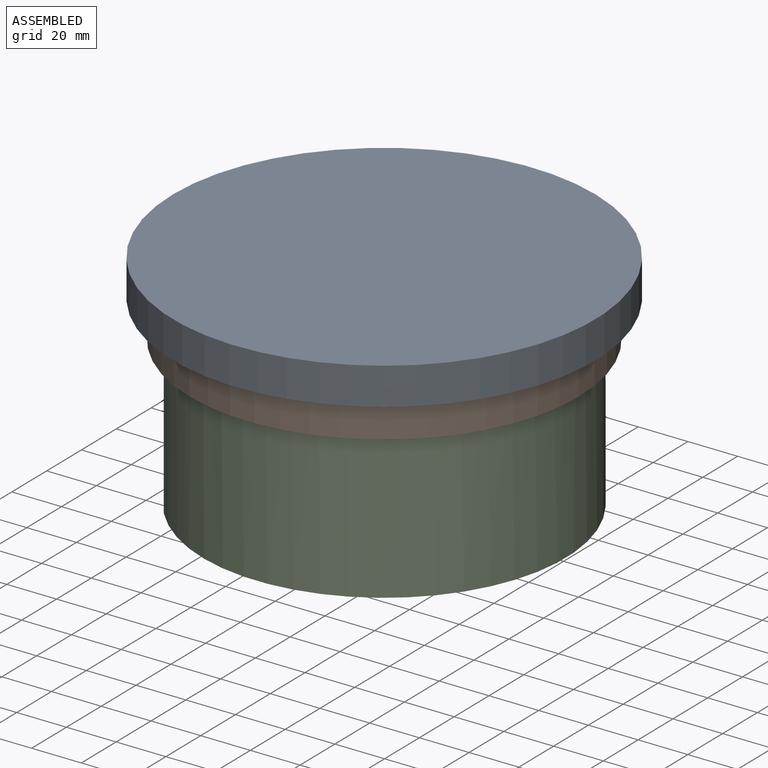
[diagram: assembled view]
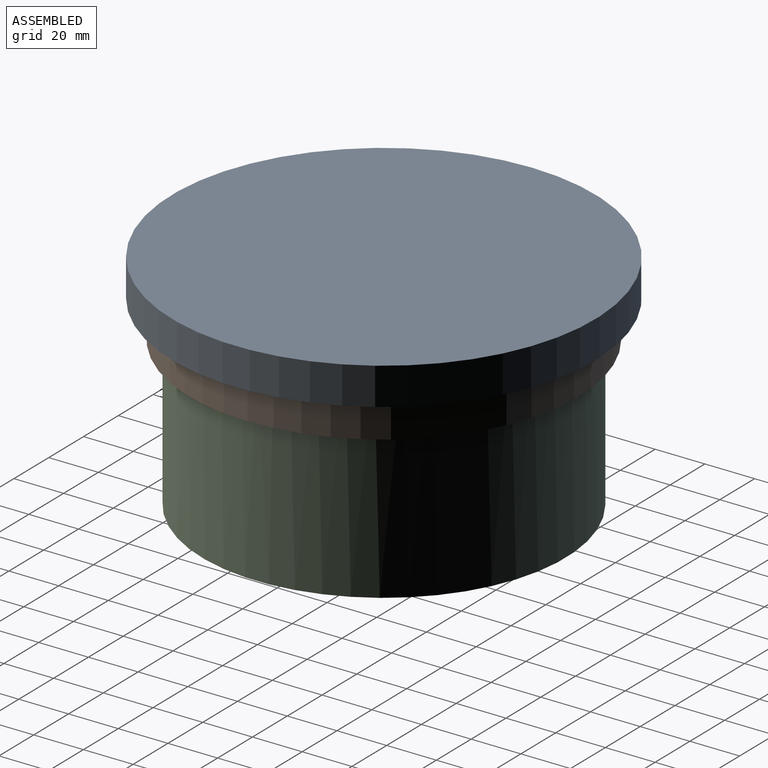
[diagram: assembled view, second angle]
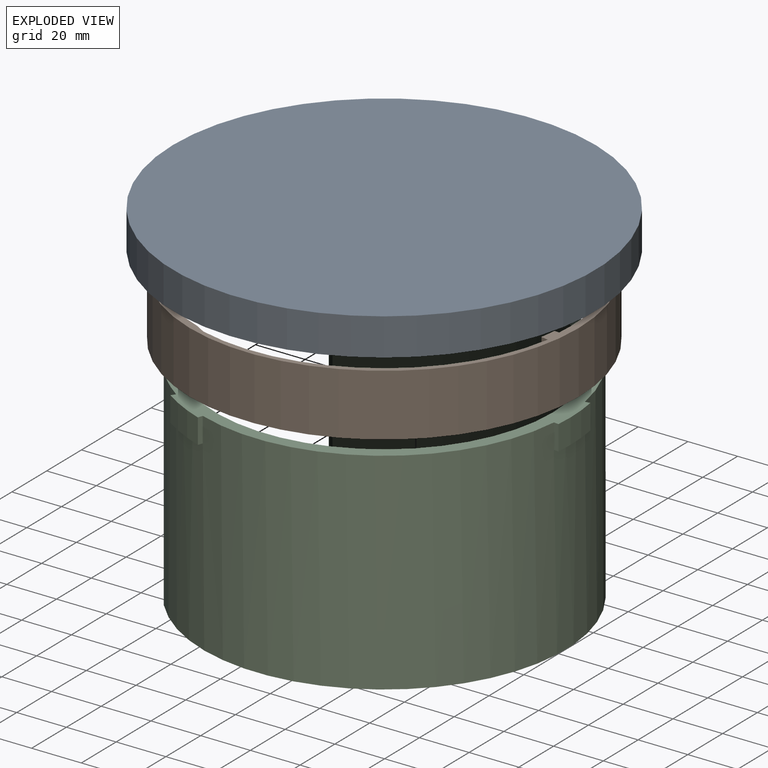
[diagram: exploded view]
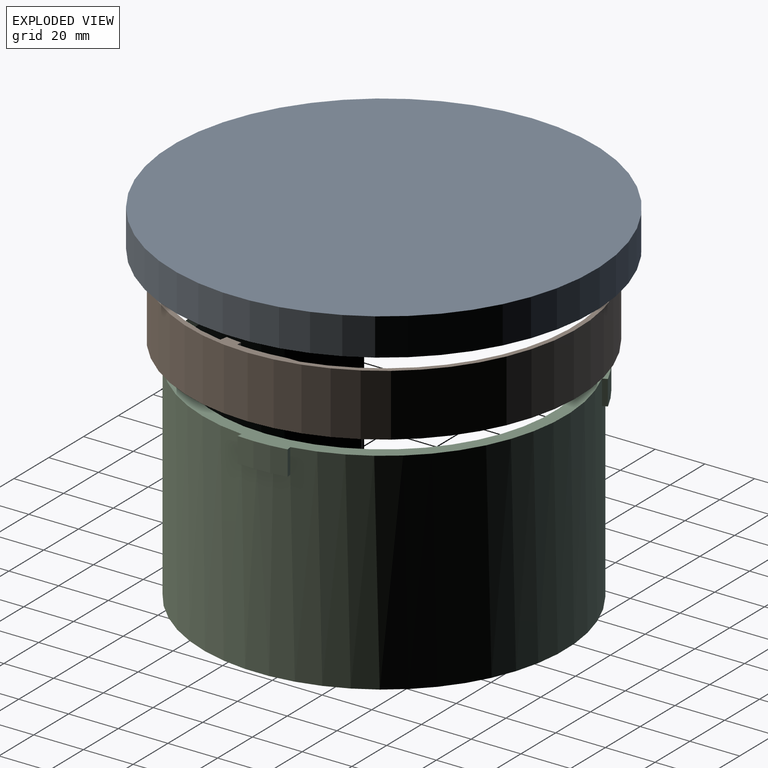
[diagram: exploded view, second angle]
ASSEMBLY  parts=3 mates=2
PART A: 31 faces, bbox 170x170x15 mm
  f0: plane 170x170mm, normal (0,0,1), area 22698mm2, adj f1
  f1: cylinder r=85mm len=170mm, axis (0,0,-1), area 8011.1mm2, adj f0,f2
  f2: plane 170x170mm, normal (0,0,-1), area 1055.6mm2, adj f1,f3
  f3: cylinder r=83mm len=166mm, axis (0,0,-1), area 5257.1mm2, adj f2,f4,f5,f21,f23,f24,f26
  f4: plane 166x166mm, normal (0,0,-1), area 21155.1mm2, adj f3,f6,f7,f8,f9,f11,f12,f13
  f5: plane 24.59x23.9mm, normal (0,0,-1), area 257.8mm2, adj f3,f21,f22,f23
  f6: plane 2x1.93mm, normal (0.97,0.26,0), area 4mm2, adj f4,f7,f9,f10
  f7: cylinder r=74mm len=6.16mm, axis (0,0,1), area 12.9mm2, adj f4,f6,f8,f10
  f8: plane 2x1.88mm, normal (-0.94,-0.34,0), area 4mm2, adj f4,f7,f9,f10
  f9: cylinder r=76mm len=6.32mm, axis (0,0,1), area 13.3mm2, adj f4,f6,f8,f10
  f10: plane 6.84x3.87mm, normal (0,0,-1), area 13.1mm2, adj f6,f7,f8,f9
  f11: cylinder r=76mm len=6.47mm, axis (0,0,1), area 13.3mm2, adj f4,f12,f14,f15
  f12: plane 2x1.93mm, normal (-0.26,-0.97,0), area 4mm2, adj f4,f11,f13,f15
  f13: cylinder r=74mm len=6.3mm, axis (0,0,1), area 12.9mm2, adj f4,f12,f14,f15
  f14: plane 2x1.97mm, normal (0.17,0.98,0), area 4mm2, adj f4,f11,f13,f15
  f15: plane 6.82x3.37mm, normal (0,0,-1), area 13.1mm2, adj f11,f12,f13,f14
  f16: cylinder r=76mm len=4.89mm, axis (0,0,1), area 13.3mm2, adj f4,f17,f19,f20
  f17: plane 2x1.41mm, normal (-0.71,0.71,0), area 4mm2, adj f4,f16,f18,f20
  f18: cylinder r=74mm len=4.76mm, axis (0,0,1), area 12.9mm2, adj f4,f17,f19,f20
  f19: plane 2x1.53mm, normal (0.77,-0.64,0), area 4mm2, adj f4,f16,f18,f20
  f20: plane 6.17x5.89mm, normal (0,0,-1), area 13.1mm2, adj f16,f17,f18,f19
  f21: cylinder r=1.5mm len=18.15mm, axis (0.68,0.73,0), area 54.8mm2, adj f3,f5,f24,f28
  f22: cylinder r=1.5mm len=9.1mm, axis (-0.73,0.68,0), area 25.9mm2, adj f5,f25,f28,f30
  f23: cylinder r=1.5mm len=18.15mm, axis (-0.68,-0.73,0), area 54.8mm2, adj f3,f5,f26,f30
  f24: cylinder r=1.5mm len=20.27mm, axis (0.68,0.73,0), area 57.1mm2, adj f3,f4,f21,f27
  f25: cylinder r=1.5mm len=13.51mm, axis (-0.73,0.68,0), area 31.1mm2, adj f4,f22,f27,f29
  f26: cylinder r=1.5mm len=20.27mm, axis (-0.68,-0.73,0), area 57.1mm2, adj f3,f4,f23,f29
  f27: bspline ~3.22x2.12mm, area 4.2mm2, adj f24,f25,f28
  f28: sphere r=1.5mm, area 3.5mm2, adj f21,f22,f27
  f29: bspline ~3.22x2.12mm, area 4.2mm2, adj f25,f26,f30
  f30: sphere r=1.5mm, area 3.5mm2, adj f22,f23,f29
PART B: 27 faces, bbox 156.5x156.5x25 mm
  f0: plane 156.5x156.5mm, normal (0,0,1), area 1096.5mm2, adj f1,f3,f4,f5,f6,f8,f9,f10
  f1: plane 25x4.23mm, normal (0.5,-0.87,0), area 122.1mm2, adj f0,f2,f15,f17,f22
  f2: plane 14.75x1.53mm, normal (-0.77,-0.64,0), area 29.5mm2, adj f1,f3,f17,f23
  f3: cylinder r=73.25mm len=25mm, axis (0,0,1), area 442.7mm2, adj f0,f2,f4,f17,f21,f23
  f4: plane 25x2.82mm, normal (0.94,0.34,0), area 75mm2, adj f0,f3,f5,f17
  f5: cylinder r=76.25mm len=100.19mm, axis (0,0,1), area 3206.7mm2, adj f0,f4,f6,f17
  f6: plane 25x4.88mm, normal (-1,0,0), area 122.1mm2, adj f0,f5,f7,f17,f25
  f7: plane 14.75x1.97mm, normal (-0.17,0.98,0), area 29.5mm2, adj f6,f8,f17,f26
  f8: cylinder r=73.25mm len=25.44mm, axis (0,0,1), area 442.7mm2, adj f0,f7,f9,f17,f24,f26
  f9: plane 25x2.95mm, normal (-0.17,-0.98,0), area 75mm2, adj f0,f8,f10,f17
  f10: cylinder r=76.25mm len=96.6mm, axis (0,0,1), area 3206.7mm2, adj f0,f9,f11,f17
  f11: plane 25x4.23mm, normal (0.5,0.87,0), area 122.1mm2, adj f0,f10,f12,f17,f19
  f12: plane 14.75x1.88mm, normal (0.94,-0.34,0), area 29.5mm2, adj f11,f13,f17,f20
  f13: cylinder r=73.25mm len=25mm, axis (0,0,1), area 442.7mm2, adj f0,f12,f14,f17,f18,f20
  f14: plane 25x2.3mm, normal (-0.77,0.64,0), area 75mm2, adj f0,f13,f15,f17
  f15: cylinder r=76.25mm len=113.61mm, axis (0,0,1), area 3206.7mm2, adj f0,f1,f14,f17
  f16: cylinder r=78.25mm len=156.5mm, axis (0,0,1), area 12291.5mm2, adj f0,f17
  f17: plane 156.5x156.5mm, normal (0,0,-1), area 1213.2mm2, adj f1,f2,f3,f4,f5,f6,f7,f8
  f18: plane 10.25x1.64mm, normal (0.82,-0.57,0), area 20.5mm2, adj f0,f13,f19,f20
  f19: cylinder r=75.25mm len=17.42mm, axis (0,0,1), area 201.9mm2, adj f0,f11,f18,f20
  f20: plane 18.11x10.71mm, normal (0,0,1), area 38.9mm2, adj f12,f13,f18,f19
  f21: plane 10.25x1.81mm, normal (-0.91,-0.42,0), area 20.5mm2, adj f0,f3,f22,f23
  f22: cylinder r=75.25mm len=16.57mm, axis (0,0,1), area 201.9mm2, adj f0,f1,f21,f23
  f23: plane 17.41x12.09mm, normal (0,0,1), area 38.9mm2, adj f2,f3,f21,f22
  f24: plane 10.25x1.99mm, normal (0.09,1,0), area 20.5mm2, adj f0,f8,f25,f26
  f25: cylinder r=75.25mm len=19.63mm, axis (0,0,1), area 201.9mm2, adj f0,f6,f24,f26
  f26: plane 19.63x3.11mm, normal (0,0,1), area 38.9mm2, adj f7,f8,f24,f25
PART C: 22 faces, bbox 130.5x146x85 mm
  f0: cylinder r=73mm len=146mm, axis (0,0,1), area 29641.7mm2, adj f1,f4,f8,f10,f11,f12,f13,f15
  f1: plane 146x128.51mm, normal (0,0,-1), area 527.7mm2, adj f0,f5,f20,f21
  f2: plane 139x122.35mm, normal (0,0,-1), area 502.2mm2, adj f3,f7,f20,f21
  f3: cylinder r=68mm len=136mm, axis (0,0,1), area 28145.5mm2, adj f2,f4,f20,f21
  f4: plane 146x130.51mm, normal (0,0,1), area 1832.7mm2, adj f0,f3,f8,f9,f10,f12,f13,f14
  f5: cylinder r=71.5mm len=143mm, axis (0,0,1), area 348.2mm2, adj f1,f6,f20,f21
  f6: plane 143x125.87mm, normal (0,0,-1), area 686.6mm2, adj f5,f7,f20,f21
  f7: cylinder r=69.5mm len=139mm, axis (0,0,1), area 338.4mm2, adj f2,f6,f20,f21
  f8: plane 10x1.64mm, normal (-0.82,0.57,0), area 20mm2, adj f0,f4,f9,f11
  f9: cylinder r=75mm len=17.37mm, axis (0,0,1), area 196.3mm2, adj f4,f8,f10,f11
  f10: plane 10x1.88mm, normal (0.94,-0.34,0), area 20mm2, adj f0,f4,f9,f11
  f11: plane 18.05x10.68mm, normal (0,0,-1), area 38.7mm2, adj f0,f8,f9,f10
  f12: plane 10x1.97mm, normal (-0.17,0.98,0), area 20mm2, adj f0,f4,f14,f15
  f13: plane 10x1.99mm, normal (-0.09,-1,0), area 20mm2, adj f0,f4,f14,f15
  f14: cylinder r=75mm len=19.56mm, axis (0,0,1), area 196.3mm2, adj f4,f12,f13,f15
  f15: plane 19.56x3.11mm, normal (0,0,-1), area 38.7mm2, adj f0,f12,f13,f14
  f16: plane 10x1.53mm, normal (-0.77,-0.64,0), area 20mm2, adj f0,f4,f18,f19
  f17: plane 10x1.81mm, normal (0.91,0.42,0), area 20mm2, adj f0,f4,f18,f19
  f18: cylinder r=75mm len=16.51mm, axis (0,0,1), area 196.3mm2, adj f4,f16,f17,f19
  f19: plane 17.36x12.05mm, normal (0,0,-1), area 38.7mm2, adj f0,f16,f17,f18
  f20: plane 85x3.8mm, normal (-0.65,0.76,0), area 423mm2, adj f0,f1,f2,f3,f4,f5,f6,f7
  f21: plane 85x3.8mm, normal (-0.65,-0.76,0), area 423mm2, adj f0,f1,f2,f3,f4,f5,f6,f7
PLACE A t=(111.84,-42.84,-43.95)mm
PLACE B t=(111.84,-42.84,-48.95)mm
PLACE C t=(111.84,-42.84,-48.95)mm
MATE fastened A.f1 <-> B.f16  axis (0,0,-1) through (111.84,-42.84,-48.95)mm
MATE fastened B.f10 <-> C.f0  axis (0,0,1) through (111.84,-42.84,-48.95)mm
